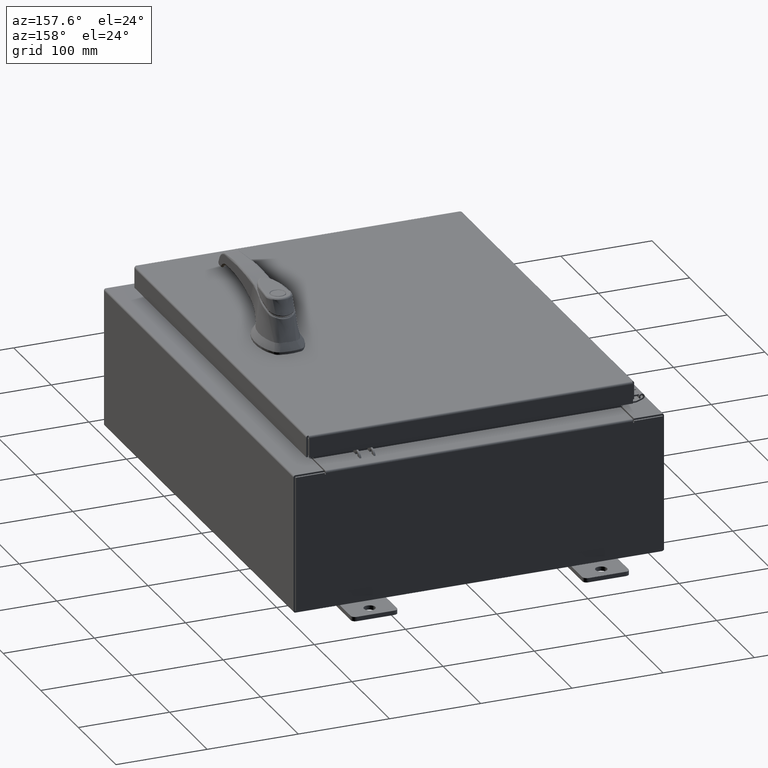
[diagram: clean part render]
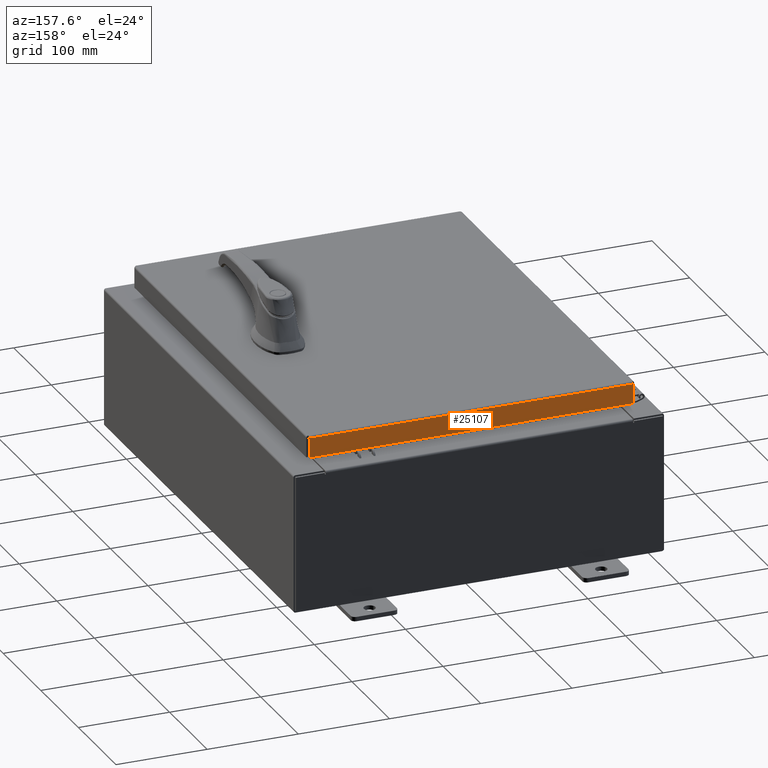
[diagram: same view with one face highlighted and labeled with its STEP entity id]
A machine part, auxiliary view. The second image highlights one B-rep face of the part: STEP entity #25107.
In plain terms, the highlighted planar face has unit normal (0, -1, -0).
Its self-contained STEP definition (entity closure, byte-faithful):
#2510 = FACE_OUTER_BOUND ( 'NONE', #88040, .T. ) ;
#3895 = DIRECTION ( 'NONE',  ( 1.000000000000000000, -0.0000000000000000000, 1.157889796692962600E-016 ) ) ;
#9742 = ORIENTED_EDGE ( 'NONE', *, *, #88614, .F. ) ;
#9748 = LINE ( 'NONE', #83702, #71737 ) ;
#14785 = PLANE ( 'NONE',  #21808 ) ;
#15740 = CARTESIAN_POINT ( 'NONE',  ( 6.989157864376270600, 9.094000000000001200, 3.480555384750558000E-014 ) ) ;
#21808 = AXIS2_PLACEMENT_3D ( 'NONE', #56827, #64950, #73824 ) ;
#23364 = EDGE_CURVE ( 'NONE', #82135, #27175, #36970, .T. ) ;
#25107 = ADVANCED_FACE ( 'NONE', ( #2510 ), #14785, .F. ) ;
#27175 = VERTEX_POINT ( 'NONE', #71945 ) ;
#29925 = CARTESIAN_POINT ( 'NONE',  ( -6.989157864376267100, 9.094000000000001200, -0.07469999999999972500 ) ) ;
#31721 = VERTEX_POINT ( 'NONE', #48972 ) ;
#33165 = DIRECTION ( 'NONE',  ( -1.000000000000000000, -7.330657979096144000E-031, 7.719265311286419400E-017 ) ) ;
#34307 = LINE ( 'NONE', #29925, #98943 ) ;
#36293 = ORIENTED_EDGE ( 'NONE', *, *, #94464, .F. ) ;
#36970 = LINE ( 'NONE', #15740, #98994 ) ;
#48972 = CARTESIAN_POINT ( 'NONE',  ( -6.989157864376267100, 9.094000000000004700, -0.9377000000000014200 ) ) ;
#54342 = CARTESIAN_POINT ( 'NONE',  ( -7.077999999999998500, 9.094000000000004700, -0.9377000000000014200 ) ) ;
#56377 = VECTOR ( 'NONE', #3895, 39.37007874015748100 ) ;
#56827 = CARTESIAN_POINT ( 'NONE',  ( -3.999900219714020000E-030, 9.094000000000001200, 3.480555384750558000E-014 ) ) ;
#64950 = DIRECTION ( 'NONE',  ( 4.398394787457685500E-031, -1.000000000000000000, -3.798629886902792400E-015 ) ) ;
#71737 = VECTOR ( 'NONE', #33165, 39.37007874015748100 ) ;
#71945 = CARTESIAN_POINT ( 'NONE',  ( 6.989157864376270600, 9.094000000000004700, -0.9376999999999996400 ) ) ;
#73824 = DIRECTION ( 'NONE',  ( 0.0000000000000000000, 3.798629886902792400E-015, -1.000000000000000000 ) ) ;
#74787 = DIRECTION ( 'NONE',  ( 0.0000000000000000000, 3.798629886902792400E-015, -1.000000000000000000 ) ) ;
#76242 = LINE ( 'NONE', #54342, #56377 ) ;
#81937 = CARTESIAN_POINT ( 'NONE',  ( 6.989157864376270600, 9.094000000000001200, -0.08770000000000106900 ) ) ;
#82135 = VERTEX_POINT ( 'NONE', #81937 ) ;
#83702 = CARTESIAN_POINT ( 'NONE',  ( -7.077999999999998500, 9.094000000000001200, -0.08769999999999997200 ) ) ;
#84441 = EDGE_CURVE ( 'NONE', #31721, #27175, #76242, .T. ) ;
#84993 = ORIENTED_EDGE ( 'NONE', *, *, #23364, .T. ) ;
#88040 = EDGE_LOOP ( 'NONE', ( #9742, #84993, #95253, #36293 ) ) ;
#88614 = EDGE_CURVE ( 'NONE', #82135, #104022, #9748, .T. ) ;
#88914 = DIRECTION ( 'NONE',  ( -0.0000000000000000000, 3.798629886902792400E-015, -1.000000000000000000 ) ) ;
#94464 = EDGE_CURVE ( 'NONE', #104022, #31721, #34307, .T. ) ;
#95253 = ORIENTED_EDGE ( 'NONE', *, *, #84441, .F. ) ;
#98943 = VECTOR ( 'NONE', #88914, 39.37007874015748100 ) ;
#98994 = VECTOR ( 'NONE', #74787, 39.37007874015748100 ) ;
#103024 = CARTESIAN_POINT ( 'NONE',  ( -6.989157864376267100, 9.094000000000001200, -0.08770000000000052800 ) ) ;
#104022 = VERTEX_POINT ( 'NONE', #103024 ) ;